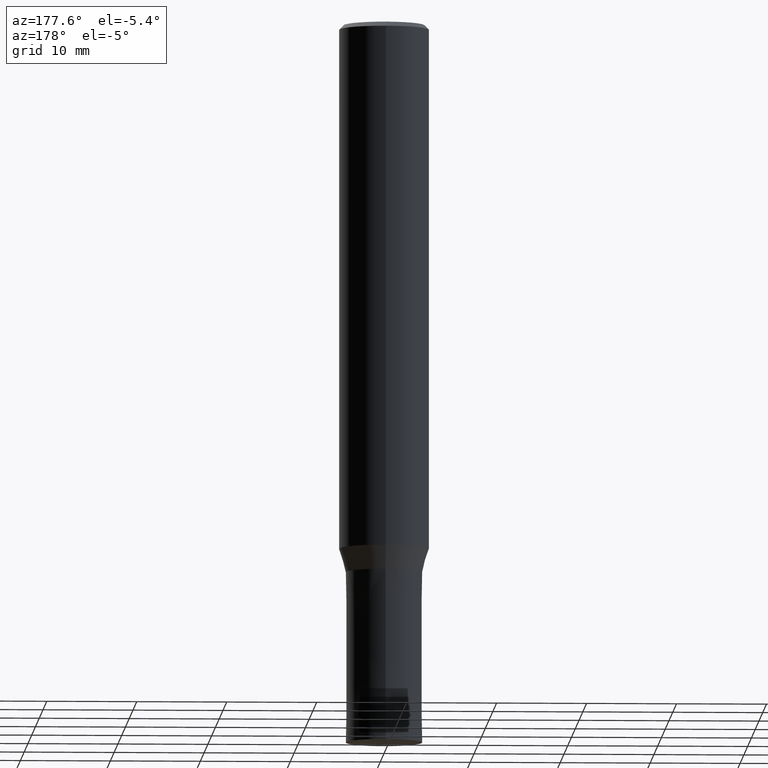
[diagram: clean part render]
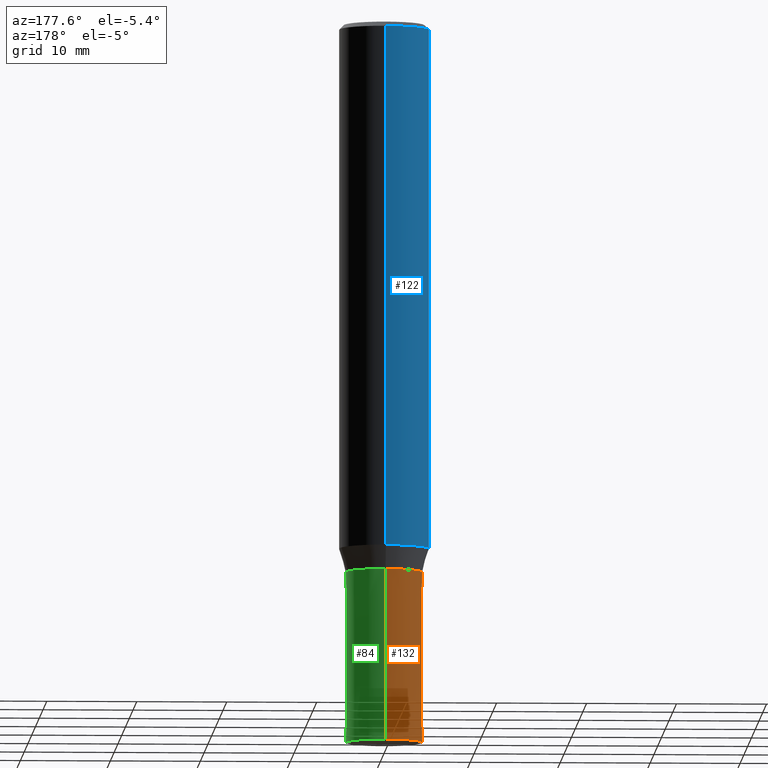
[diagram: same view with three faces highlighted in distinct colors, each labeled with its STEP entity id]
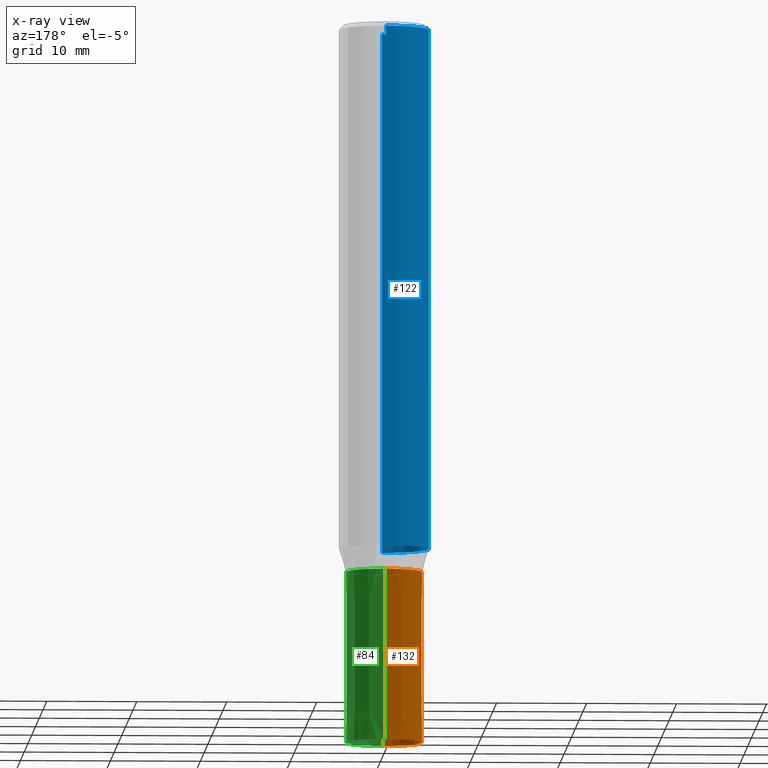
[diagram: x-ray of the same camera — body ghosted, the three highlighted faces saturated]
A machine part, auxiliary view with three faces highlighted in distinct colors.
The next image is the same camera in x-ray (body ghosted, the three faces saturated) — at least one of them is partly hidden behind the body in this view.
Their STEP definitions:

[orange] entity #132 — the highlighted conical surface has half-angle 0 deg.
#90=EDGE_CURVE('',#124,#166,#212,.T.);
#92=VERTEX_POINT('',#214);
#114=EDGE_CURVE('',#92,#124,#238,.T.);
#124=VERTEX_POINT('',#249);
#128=EDGE_CURVE('',#156,#166,#253,.T.);
#132=ADVANCED_FACE('',(#258),#259,.T.);
#156=VERTEX_POINT('',#286);
#164=EDGE_CURVE('',#156,#92,#296,.T.);
#166=VERTEX_POINT('',#298);
#212=LINE('',#340,#341);
#214=CARTESIAN_POINT('',(5.20445454310972E-016,-4.2499,-61.0));
#238=CIRCLE('',#376,4.2499);
#249=CARTESIAN_POINT('',(0.0,4.2499,-61.0));
#253=CIRCLE('',#394,4.25);
#258=FACE_OUTER_BOUND('',#399,.T.);
#259=CONICAL_SURFACE('',#400,4.24995,5.26315789467598E-006);
#286=CARTESIAN_POINT('',(5.2045770037451E-016,-4.25,-80.0));
#296=LINE('',#448,#449);
#298=CARTESIAN_POINT('',(0.0,4.25,-80.0));
#340=CARTESIAN_POINT('',(-5.20451577342741E-016,4.24995,-70.5));
#341=VECTOR('',#484,1.0);
#376=AXIS2_PLACEMENT_3D('',#518,#519,#520);
#394=AXIS2_PLACEMENT_3D('',#539,#540,#541);
#399=EDGE_LOOP('',(#549,#550,#551,#552));
#400=AXIS2_PLACEMENT_3D('',#553,#554,#555);
#448=CARTESIAN_POINT('',(5.20451577342741E-016,-4.24995,-70.5));
#449=VECTOR('',#596,1.0);
#484=DIRECTION('',(-6.44529659896085E-022,5.26315789465168E-006,-0.99999999998615));
#518=CARTESIAN_POINT('',(0.0,0.0,-61.0));
#519=DIRECTION('',(0.0,0.0,-1.0));
#520=DIRECTION('',(0.0,1.0,0.0));
#539=CARTESIAN_POINT('',(0.0,0.0,-80.0));
#540=DIRECTION('',(0.0,0.0,-1.0));
#541=DIRECTION('',(0.0,1.0,0.0));
#549=ORIENTED_EDGE('',*,*,#90,.T.);
#550=ORIENTED_EDGE('',*,*,#128,.F.);
#551=ORIENTED_EDGE('',*,*,#164,.T.);
#552=ORIENTED_EDGE('',*,*,#114,.T.);
#553=CARTESIAN_POINT('',(0.0,0.0,-70.5));
#554=DIRECTION('',(0.0,-0.0,-1.0));
#555=DIRECTION('',(0.0,1.0,0.0));
#596=DIRECTION('',(-6.44529659896085E-022,5.26315789465168E-006,0.99999999998615));

[blue] entity #122 — the highlighted cylindrical surface (partial cylindrical patch) has radius 5 mm, axis along (-0, -0, 1).
#88=VERTEX_POINT('',#210);
#98=EDGE_CURVE('',#150,#136,#220,.T.);
#106=EDGE_CURVE('',#150,#88,#230,.T.);
#122=ADVANCED_FACE('',(#246),#247,.T.);
#136=VERTEX_POINT('',#263);
#138=EDGE_CURVE('',#140,#136,#265,.T.);
#140=VERTEX_POINT('',#267);
#150=VERTEX_POINT('',#278);
#154=EDGE_CURVE('',#88,#140,#284,.T.);
#210=CARTESIAN_POINT('',(6.12303176911189E-016,-5.0,-0.5));
#220=CIRCLE('',#352,5.0);
#230=LINE('',#364,#365);
#246=FACE_OUTER_BOUND('',#385,.T.);
#247=CYLINDRICAL_SURFACE('',#386,5.0);
#263=CARTESIAN_POINT('',(0.0,5.0,-58.384));
#265=LINE('',#408,#409);
#267=CARTESIAN_POINT('',(0.0,5.0,-0.5));
#278=CARTESIAN_POINT('',(6.12303176911189E-016,-5.0,-58.384));
#284=CIRCLE('',#433,5.0);
#352=AXIS2_PLACEMENT_3D('',#491,#492,#493);
#364=CARTESIAN_POINT('',(6.12303176911189E-016,-5.0,-29.442));
#365=VECTOR('',#511,1.0);
#385=EDGE_LOOP('',(#529,#530,#531,#532));
#386=AXIS2_PLACEMENT_3D('',#533,#534,#535);
#408=CARTESIAN_POINT('',(-6.12303176911189E-016,5.0,-29.442));
#409=VECTOR('',#559,1.0);
#433=AXIS2_PLACEMENT_3D('',#578,#579,#580);
#491=CARTESIAN_POINT('',(0.0,0.0,-58.384));
#492=DIRECTION('',(0.0,0.0,-1.0));
#493=DIRECTION('',(0.0,1.0,0.0));
#511=DIRECTION('',(-0.0,-0.0,1.0));
#529=ORIENTED_EDGE('',*,*,#138,.T.);
#530=ORIENTED_EDGE('',*,*,#98,.F.);
#531=ORIENTED_EDGE('',*,*,#106,.T.);
#532=ORIENTED_EDGE('',*,*,#154,.T.);
#533=CARTESIAN_POINT('',(0.0,0.0,-29.442));
#534=DIRECTION('',(-0.0,-0.0,1.0));
#535=DIRECTION('',(0.0,1.0,0.0));
#559=DIRECTION('',(0.0,0.0,-1.0));
#578=CARTESIAN_POINT('',(0.0,0.0,-0.5));
#579=DIRECTION('',(0.0,0.0,-1.0));
#580=DIRECTION('',(0.0,1.0,0.0));

[green] entity #84 — the highlighted conical surface has half-angle 0 deg.
#84=ADVANCED_FACE('',(#205),#206,.T.);
#90=EDGE_CURVE('',#124,#166,#212,.T.);
#92=VERTEX_POINT('',#214);
#96=EDGE_CURVE('',#124,#92,#218,.T.);
#118=EDGE_CURVE('',#166,#156,#242,.T.);
#124=VERTEX_POINT('',#249);
#156=VERTEX_POINT('',#286);
#164=EDGE_CURVE('',#156,#92,#296,.T.);
#166=VERTEX_POINT('',#298);
#205=FACE_OUTER_BOUND('',#332,.T.);
#206=CONICAL_SURFACE('',#333,4.24995,5.26315789467598E-006);
#212=LINE('',#340,#341);
#214=CARTESIAN_POINT('',(5.20445454310972E-016,-4.2499,-61.0));
#218=CIRCLE('',#349,4.2499);
#242=CIRCLE('',#380,4.25);
#249=CARTESIAN_POINT('',(0.0,4.2499,-61.0));
#286=CARTESIAN_POINT('',(5.2045770037451E-016,-4.25,-80.0));
#296=LINE('',#448,#449);
#298=CARTESIAN_POINT('',(0.0,4.25,-80.0));
#332=EDGE_LOOP('',(#477,#478,#479,#480));
#333=AXIS2_PLACEMENT_3D('',#481,#482,#483);
#340=CARTESIAN_POINT('',(-5.20451577342741E-016,4.24995,-70.5));
#341=VECTOR('',#484,1.0);
#349=AXIS2_PLACEMENT_3D('',#488,#489,#490);
#380=AXIS2_PLACEMENT_3D('',#522,#523,#524);
#448=CARTESIAN_POINT('',(5.20451577342741E-016,-4.24995,-70.5));
#449=VECTOR('',#596,1.0);
#477=ORIENTED_EDGE('',*,*,#90,.F.);
#478=ORIENTED_EDGE('',*,*,#96,.T.);
#479=ORIENTED_EDGE('',*,*,#164,.F.);
#480=ORIENTED_EDGE('',*,*,#118,.F.);
#481=CARTESIAN_POINT('',(0.0,0.0,-70.5));
#482=DIRECTION('',(0.0,-0.0,-1.0));
#483=DIRECTION('',(0.0,1.0,0.0));
#484=DIRECTION('',(-6.44529659896085E-022,5.26315789465168E-006,-0.99999999998615));
#488=CARTESIAN_POINT('',(0.0,0.0,-61.0));
#489=DIRECTION('',(0.0,0.0,-1.0));
#490=DIRECTION('',(0.0,1.0,0.0));
#522=CARTESIAN_POINT('',(0.0,0.0,-80.0));
#523=DIRECTION('',(0.0,0.0,-1.0));
#524=DIRECTION('',(0.0,1.0,0.0));
#596=DIRECTION('',(-6.44529659896085E-022,5.26315789465168E-006,0.99999999998615));